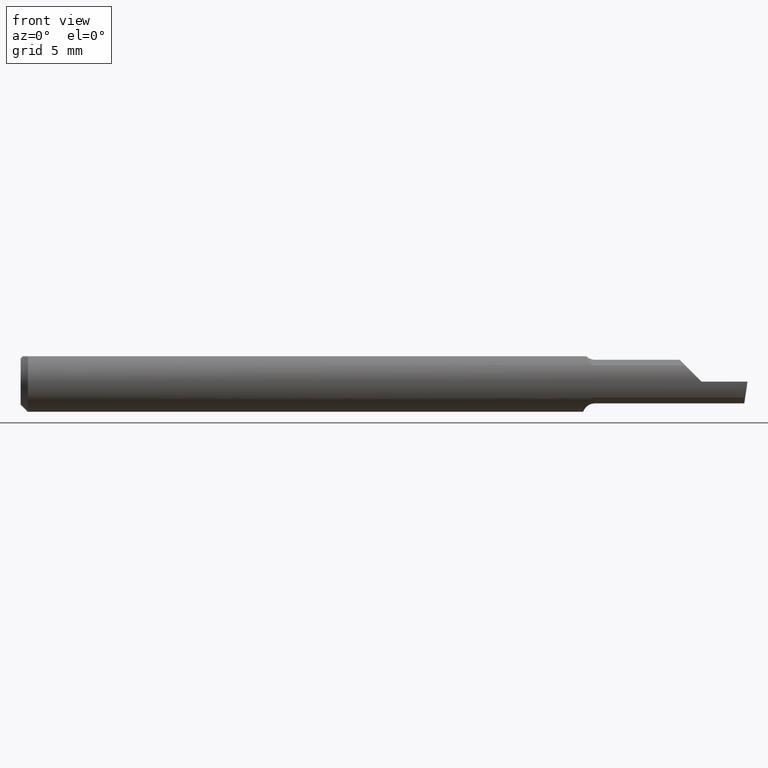
[diagram: clean part render]
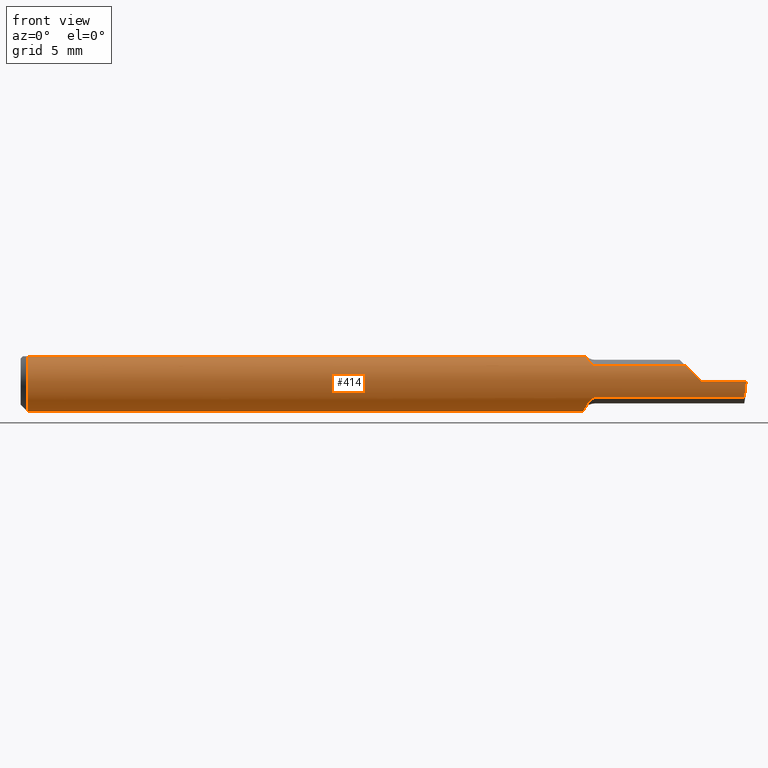
[diagram: same view with one face highlighted and labeled with its STEP entity id]
A machine part, front view. The second image highlights one B-rep face of the part: STEP entity #414.
In plain terms, the highlighted cylindrical surface (edge-blend (fillet) strip) has radius 1.5837 mm, axis along (-1, -0, -0).
Its self-contained STEP definition (entity closure, byte-faithful):
#10 = DIRECTION ( 'NONE',  ( -1.000000000000000000, -0.0000000000000000000, -0.0000000000000000000 ) ) ;
#19 = CARTESIAN_POINT ( 'NONE',  ( 1.160000000000000142, 0.01155624999999988432, -0.06126969549408175369 ) ) ;
#38 = CARTESIAN_POINT ( 'NONE',  ( 1.166182189689074944, -0.03386738844375222074, 0.05235000000000000070 ) ) ;
#41 = VECTOR ( 'NONE', #489, 39.37007874015748143 ) ;
#43 = CARTESIAN_POINT ( 'NONE',  ( 1.159999999999995923, 0.004792881695547034603, -0.06254535345742004426 ) ) ;
#52 = VERTEX_POINT ( 'NONE', #614 ) ;
#53 = VECTOR ( 'NONE', #668, 39.37007874015748143 ) ;
#58 = ORIENTED_EDGE ( 'NONE', *, *, #210, .T. ) ;
#63 = CARTESIAN_POINT ( 'NONE',  ( 1.160000000000000142, 0.03386738844375224156, 0.05235000000000000070 ) ) ;
#68 = EDGE_CURVE ( 'NONE', #369, #391, #158, .T. ) ;
#70 = VERTEX_POINT ( 'NONE', #19 ) ;
#74 = CARTESIAN_POINT ( 'NONE',  ( 2.249639673992788601E-32, -0.06234999999999999570, 1.836970198721030427E-16 ) ) ;
#76 = DIRECTION ( 'NONE',  ( 1.000000000000000000, 5.691349986800549142E-18, 0.0000000000000000000 ) ) ;
#79 = EDGE_CURVE ( 'NONE', #470, #213, #572, .T. ) ;
#80 = CIRCLE ( 'NONE', #138, 0.06235000000000000264 ) ;
#87 = CARTESIAN_POINT ( 'NONE',  ( 1.393107270290912858, -0.06235000000000000264, 0.01189272970908752079 ) ) ;
#88 = CARTESIAN_POINT ( 'NONE',  ( 1.167873522747514325, -0.03849383661596396389, 0.04935695859860207008 ) ) ;
#89 = EDGE_CURVE ( 'NONE', #52, #470, #357, .T. ) ;
#106 = VECTOR ( 'NONE', #675, 39.37007874015748143 ) ;
#108 = ORIENTED_EDGE ( 'NONE', *, *, #147, .F. ) ;
#126 = CARTESIAN_POINT ( 'NONE',  ( 1.381685276638327631, -0.05903713403021959572, 0.02331472336167217385 ) ) ;
#129 = ORIENTED_EDGE ( 'NONE', *, *, #402, .F. ) ;
#136 = CARTESIAN_POINT ( 'NONE',  ( 1.179654899318486105, -0.05157034440792585689, 0.03505133412385295910 ) ) ;
#138 = AXIS2_PLACEMENT_3D ( 'NONE', #227, #602, #282 ) ;
#142 = CARTESIAN_POINT ( 'NONE',  ( 1.497433779686219379, -0.06235000000000005121, 3.231995301756449018E-19 ) ) ;
#144 = CARTESIAN_POINT ( 'NONE',  ( 1.302500000000000213, -0.05267366071428577351, -0.03336177403790612644 ) ) ;
#147 = EDGE_CURVE ( 'NONE', #362, #391, #410, .T. ) ;
#148 = CARTESIAN_POINT ( 'NONE',  ( 1.178775713346481790, -0.05116520334387900798, -0.03564627526859115436 ) ) ;
#150 = VERTEX_POINT ( 'NONE', #424 ) ;
#158 = LINE ( 'NONE', #494, #106 ) ;
#165 = DIRECTION ( 'NONE',  ( 1.000000000000000000, 5.691349986800549142E-18, 0.0000000000000000000 ) ) ;
#166 = ORIENTED_EDGE ( 'NONE', *, *, #89, .T. ) ;
#169 = AXIS2_PLACEMENT_3D ( 'NONE', #386, #76, #444 ) ;
#180 = LINE ( 'NONE', #435, #41 ) ;
#181 = VERTEX_POINT ( 'NONE', #63 ) ;
#191 = CARTESIAN_POINT ( 'NONE',  ( 1.185000000000000275, -0.05267366071428580820, 0.03336177403790609175 ) ) ;
#192 = AXIS2_PLACEMENT_3D ( 'NONE', #297, #566, #243 ) ;
#197 = CARTESIAN_POINT ( 'NONE',  ( 0.01500000000000185039, -0.03386738844380016850, 0.05235000000000000070 ) ) ;
#200 = CARTESIAN_POINT ( 'NONE',  ( 1.174327038483182095, -0.04799382633214956118, -0.03989142061000430783 ) ) ;
#210 = EDGE_CURVE ( 'NONE', #599, #181, #180, .T. ) ;
#212 = CIRCLE ( 'NONE', #169, 0.06235000000000000264 ) ;
#213 = VERTEX_POINT ( 'NONE', #643 ) ;
#226 = LINE ( 'NONE', #144, #53 ) ;
#227 = CARTESIAN_POINT ( 'NONE',  ( 0.01500000000000000465, 0.0000000000000000000, 0.0000000000000000000 ) ) ;
#243 = DIRECTION ( 'NONE',  ( 0.0000000000000000000, 0.0000000000000000000, 1.000000000000000000 ) ) ;
#246 = CARTESIAN_POINT ( 'NONE',  ( 1.168132745576695886, -0.03943215935316545656, -0.04868886658133506767 ) ) ;
#249 = VERTEX_POINT ( 'NONE', #547 ) ;
#251 = VECTOR ( 'NONE', #165, 39.37007874015748143 ) ;
#256 = EDGE_CURVE ( 'NONE', #599, #362, #80, .T. ) ;
#262 = CARTESIAN_POINT ( 'NONE',  ( 0.01500000000000000465, 0.03386738844375223462, 0.05234999999999997988 ) ) ;
#267 = B_SPLINE_CURVE_WITH_KNOTS ( 'NONE', 3,
 ( #348, #671, #459, #148, #515, #200, #568, #246, #622, #299, #672, #350, #43, #559 ),
 .UNSPECIFIED., .F., .F.,
 ( 4, 2, 2, 2, 2, 2, 4 ),
 ( 1.960001601931791046E-07, 0.0001315703184465656010, 0.0002629446367329380582, 0.0005256932733056829182, 0.001051190546451172530, 0.001576687819596662250, 0.002102185092742151970 ),
 .UNSPECIFIED. ) ;
#277 = EDGE_CURVE ( 'NONE', #70, #181, #212, .T. ) ;
#280 = CARTESIAN_POINT ( 'NONE',  ( 1.405000000000000249, -0.06235000000000005121, 1.163414459189985436E-17 ) ) ;
#282 = DIRECTION ( 'NONE',  ( 0.0000000000000000000, 0.0000000000000000000, 1.000000000000000000 ) ) ;
#287 = EDGE_LOOP ( 'NONE', ( #129, #665, #166, #309, #480, #646, #406, #108, #654, #58, #526, #630 ) ) ;
#288 = CARTESIAN_POINT ( 'NONE',  ( 1.494656860756163663, -0.05903713403021957490, -0.02331472336167221548 ) ) ;
#292 = CARTESIAN_POINT ( 'NONE',  ( 1.175661082963681769, -0.04915643512136035759, 0.03841395140597855112 ) ) ;
#297 = CARTESIAN_POINT ( 'NONE',  ( 0.0000000000000000000, 0.0000000000000000000, 0.0000000000000000000 ) ) ;
#299 = CARTESIAN_POINT ( 'NONE',  ( 1.162728993423048696, -0.02215482600002533983, -0.05866202889160992279 ) ) ;
#302 = VERTEX_POINT ( 'NONE', #336 ) ;
#309 = ORIENTED_EDGE ( 'NONE', *, *, #79, .T. ) ;
#317 = DIRECTION ( 'NONE',  ( 0.0000000000000000000, 0.0000000000000000000, 1.000000000000000000 ) ) ;
#336 = CARTESIAN_POINT ( 'NONE',  ( 1.185000000000000275, -0.05267366071428584290, -0.03336177403790605706 ) ) ;
#343 = CARTESIAN_POINT ( 'NONE',  ( 1.405000000000000249, -0.06235000000000005121, 1.163414459189985436E-17 ) ) ;
#344 = CARTESIAN_POINT ( 'NONE',  ( 1.169899083742320656, -0.04251446938472884518, 0.04588310374207919817 ) ) ;
#348 = CARTESIAN_POINT ( 'NONE',  ( 1.185000000000000275, -0.05267366071428584290, -0.03336177403790605706 ) ) ;
#350 = CARTESIAN_POINT ( 'NONE',  ( 1.160276440363477324, -0.002103274276245872560, -0.06268864719924563400 ) ) ;
#354 = AXIS2_PLACEMENT_3D ( 'NONE', #426, #638, #317 ) ;
#357 = LINE ( 'NONE', #74, #506 ) ;
#362 = VERTEX_POINT ( 'NONE', #398 ) ;
#369 = VERTEX_POINT ( 'NONE', #38 ) ;
#386 = CARTESIAN_POINT ( 'NONE',  ( 1.160000000000000142, 0.0000000000000000000, 0.0000000000000000000 ) ) ;
#391 = VERTEX_POINT ( 'NONE', #197 ) ;
#398 = CARTESIAN_POINT ( 'NONE',  ( 0.01500000000000000465, 0.0000000000000000000, -0.06235000000000000264 ) ) ;
#402 = EDGE_CURVE ( 'NONE', #249, #302, #226, .T. ) ;
#406 = ORIENTED_EDGE ( 'NONE', *, *, #68, .T. ) ;
#410 = CIRCLE ( 'NONE', #354, 0.06235000000000000264 ) ;
#414 = ADVANCED_FACE ( 'NONE', ( #590 ), #525, .T. ) ;
#416 = EDGE_CURVE ( 'NONE', #302, #70, #267, .T. ) ;
#424 = CARTESIAN_POINT ( 'NONE',  ( 1.185000000000000275, -0.05267366071428580820, 0.03336177403790609175 ) ) ;
#426 = CARTESIAN_POINT ( 'NONE',  ( 0.01500000000000000465, 0.0000000000000000000, 0.0000000000000000000 ) ) ;
#435 = CARTESIAN_POINT ( 'NONE',  ( 0.0000000000000000000, 0.03386738844375223462, 0.05234999999999997988 ) ) ;
#444 = DIRECTION ( 'NONE',  ( 0.0000000000000000000, 1.000000000000000000, 0.0000000000000000000 ) ) ;
#455 = CARTESIAN_POINT ( 'NONE',  ( 1.183537604150741274, -0.05267366071513947950, 0.03336177403655855161 ) ) ;
#458 = CARTESIAN_POINT ( 'NONE',  ( 1.495973035530412831, -0.06235000000000003734, -0.01189272970908753987 ) ) ;
#459 = CARTESIAN_POINT ( 'NONE',  ( 1.181592203943254704, -0.05228879390856555620, -0.03397671269166899211 ) ) ;
#470 = VERTEX_POINT ( 'NONE', #280 ) ;
#480 = ORIENTED_EDGE ( 'NONE', *, *, #576, .F. ) ;
#489 = DIRECTION ( 'NONE',  ( 1.000000000000000000, 0.0000000000000000000, 0.0000000000000000000 ) ) ;
#492 = CARTESIAN_POINT ( 'NONE',  ( 1.371638225962093838, -0.05267366071428578739, 0.03336177403790611951 ) ) ;
#494 = CARTESIAN_POINT ( 'NONE',  ( 0.0000000000000000000, -0.03386738844375222768, 0.05234999999999997988 ) ) ;
#504 = CARTESIAN_POINT ( 'NONE',  ( 1.182134555967766731, -0.05240678568573015755, 0.03378794548805856557 ) ) ;
#506 = VECTOR ( 'NONE', #10, 39.37007874015748143 ) ;
#515 = CARTESIAN_POINT ( 'NONE',  ( 1.177568494155622592, -0.05043275970182651419, -0.03668598949093543338 ) ) ;
#525 = CYLINDRICAL_SURFACE ( 'NONE', #192, 0.06235000000000000264 ) ;
#526 = ORIENTED_EDGE ( 'NONE', *, *, #277, .F. ) ;
#535 = LINE ( 'NONE', #586, #251 ) ;
#547 = CARTESIAN_POINT ( 'NONE',  ( 1.493589448587071544, -0.05267366071428577351, -0.03336177403790612644 ) ) ;
#559 = CARTESIAN_POINT ( 'NONE',  ( 1.160000000000000142, 0.01155624999999988432, -0.06126969549408175369 ) ) ;
#566 = DIRECTION ( 'NONE',  ( -1.000000000000000000, -0.0000000000000000000, -0.0000000000000000000 ) ) ;
#568 = CARTESIAN_POINT ( 'NONE',  ( 1.172612635401776959, -0.04600867268841647012, -0.04219264322731255956 ) ) ;
#572 =( BOUNDED_CURVE ( )  B_SPLINE_CURVE ( 3, ( #343, #87, #126, #492 ),
 .UNSPECIFIED., .F., .F. ) 
 B_SPLINE_CURVE_WITH_KNOTS ( ( 4, 4 ),
 ( 4.712388980384689674, 5.276982613231239405 ),
 .UNSPECIFIED. ) 
 CURVE ( )  GEOMETRIC_REPRESENTATION_ITEM ( )  RATIONAL_B_SPLINE_CURVE ( ( 1.000000000000000000, 0.9736121104788257874, 0.9736121104788257874, 1.000000000000000000 ) ) 
 REPRESENTATION_ITEM ( '' )  );
#576 = EDGE_CURVE ( 'NONE', #150, #213, #535, .T. ) ;
#586 = CARTESIAN_POINT ( 'NONE',  ( 1.302500000000000213, -0.05267366071428577351, 0.03336177403790612644 ) ) ;
#590 = FACE_OUTER_BOUND ( 'NONE', #287, .T. ) ;
#594 = B_SPLINE_CURVE_WITH_KNOTS ( 'NONE', 3,
 ( #656, #88, #344, #617, #292, #663, #136, #504, #455, #191 ),
 .UNSPECIFIED., .F., .F.,
 ( 4, 2, 2, 2, 4 ),
 ( 3.797231421928045814E-07, 0.0004333373953855913481, 0.0006498162315072879497, 0.0007580556495681327811, 0.0008662950676289775040 ),
 .UNSPECIFIED. ) ;
#599 = VERTEX_POINT ( 'NONE', #262 ) ;
#602 = DIRECTION ( 'NONE',  ( -1.000000000000000000, -0.0000000000000000000, -0.0000000000000000000 ) ) ;
#614 = CARTESIAN_POINT ( 'NONE',  ( 1.497433779686219379, -0.06235000000000005121, 3.231995301756449018E-19 ) ) ;
#617 = CARTESIAN_POINT ( 'NONE',  ( 1.174073837407042076, -0.04761084945882113756, 0.04033650601908234101 ) ) ;
#622 = CARTESIAN_POINT ( 'NONE',  ( 1.165988988117221403, -0.03406974560157227661, -0.05264335079965581227 ) ) ;
#624 = EDGE_CURVE ( 'NONE', #249, #52, #652, .T. ) ;
#630 = ORIENTED_EDGE ( 'NONE', *, *, #416, .F. ) ;
#638 = DIRECTION ( 'NONE',  ( -1.000000000000000000, -0.0000000000000000000, -0.0000000000000000000 ) ) ;
#643 = CARTESIAN_POINT ( 'NONE',  ( 1.371638225962093838, -0.05267366071428578739, 0.03336177403790611951 ) ) ;
#646 = ORIENTED_EDGE ( 'NONE', *, *, #648, .F. ) ;
#648 = EDGE_CURVE ( 'NONE', #369, #150, #594, .T. ) ;
#652 =( BOUNDED_CURVE ( )  B_SPLINE_CURVE ( 3, ( #657, #288, #458, #142 ),
 .UNSPECIFIED., .F., .T. ) 
 B_SPLINE_CURVE_WITH_KNOTS ( ( 4, 4 ),
 ( 0.7961532496683338955, 1.360746882514885181 ),
 .UNSPECIFIED. ) 
 CURVE ( )  GEOMETRIC_REPRESENTATION_ITEM ( )  RATIONAL_B_SPLINE_CURVE ( ( 1.000000000000000000, 0.9736121104788255654, 0.9736121104788255654, 1.000000000000000000 ) ) 
 REPRESENTATION_ITEM ( '' )  );
#654 = ORIENTED_EDGE ( 'NONE', *, *, #256, .F. ) ;
#656 = CARTESIAN_POINT ( 'NONE',  ( 1.166182189689074944, -0.03386738844375222074, 0.05235000000000000070 ) ) ;
#657 = CARTESIAN_POINT ( 'NONE',  ( 1.493589448587071544, -0.05267366071428577351, -0.03336177403790612644 ) ) ;
#663 = CARTESIAN_POINT ( 'NONE',  ( 1.178587721903974428, -0.05102224570557683386, 0.03585204334871001236 ) ) ;
#665 = ORIENTED_EDGE ( 'NONE', *, *, #624, .T. ) ;
#668 = DIRECTION ( 'NONE',  ( -1.000000000000000000, -5.691349986800549142E-18, -0.0000000000000000000 ) ) ;
#671 = CARTESIAN_POINT ( 'NONE',  ( 1.183240954672475365, -0.05267366071428580820, -0.03336177403790607093 ) ) ;
#672 = CARTESIAN_POINT ( 'NONE',  ( 1.161648092746324856, -0.01564147840104309836, -0.06074236086770339743 ) ) ;
#675 = DIRECTION ( 'NONE',  ( -1.000000000000000000, -0.0000000000000000000, -0.0000000000000000000 ) ) ;